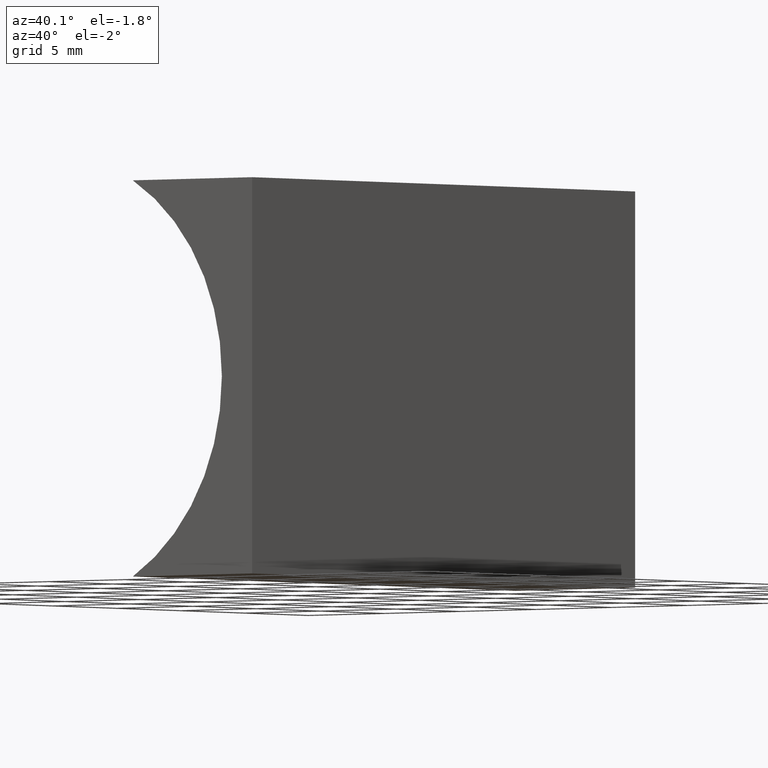
[diagram: clean part render]
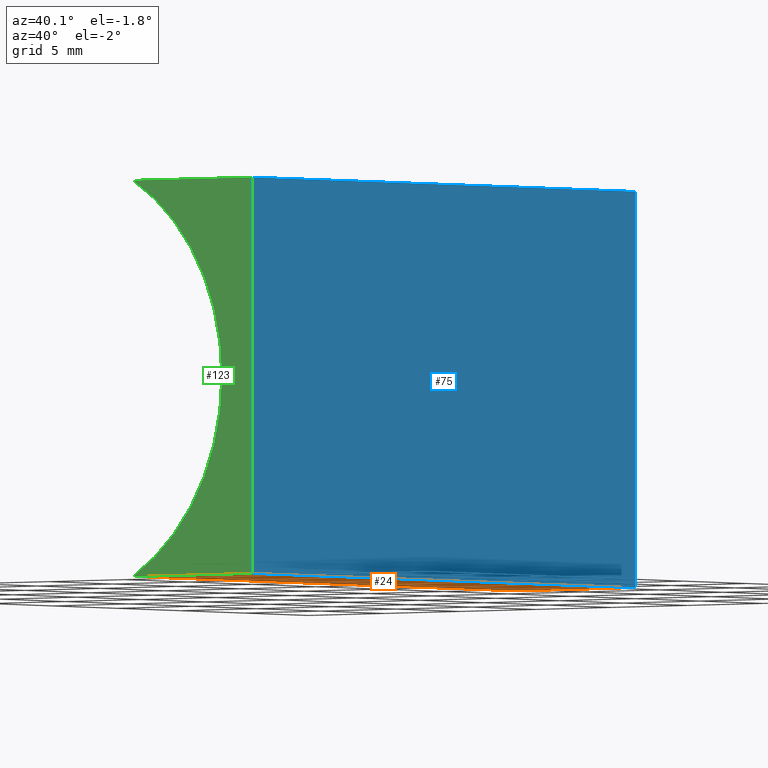
[diagram: same view with three faces highlighted in distinct colors, each labeled with its STEP entity id]
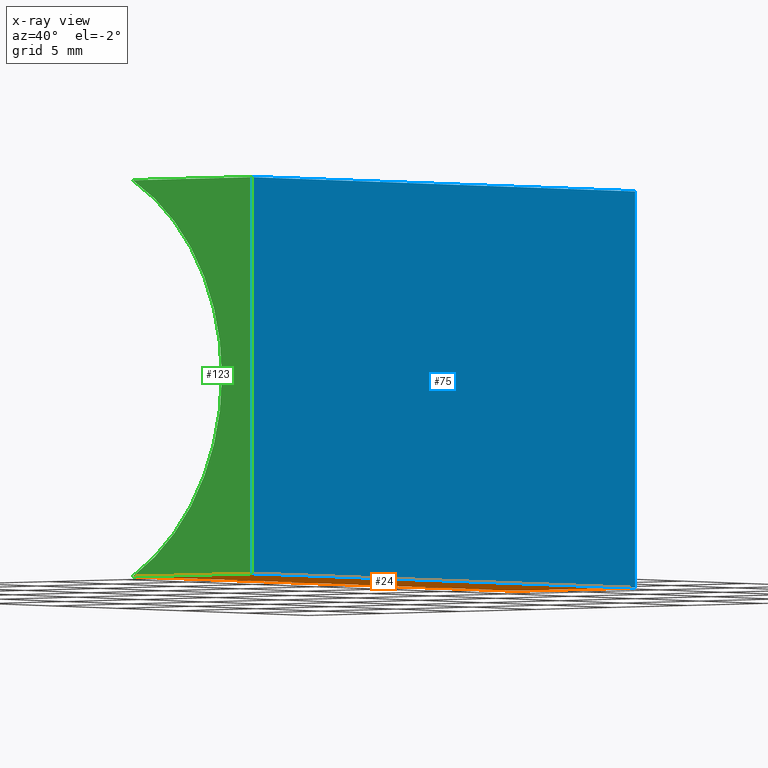
[diagram: x-ray of the same camera — body ghosted, the three highlighted faces saturated]
A machine part, auxiliary view with three faces highlighted in distinct colors.
The next image is the same camera in x-ray (body ghosted, the three faces saturated) — at least one of them is partly hidden behind the body in this view.
Their STEP definitions:

[orange] entity #24 — the highlighted planar face has unit normal (-0, 0, 1).
#6 = VECTOR ( 'NONE', #59, 1000.000000000000000 ) ;
#20 = EDGE_LOOP ( 'NONE', ( #178, #124, #48, #153 ) ) ;
#24 = ADVANCED_FACE ( 'NONE', ( #125 ), #62, .F. ) ;
#31 = CARTESIAN_POINT ( 'NONE',  ( 0.0000000000000000000, 30.00000000000000000, 0.0000000000000000000 ) ) ;
#35 = CARTESIAN_POINT ( 'NONE',  ( -7.873038461671090900, 0.0000000000000000000, -3.469446951953614200E-015 ) ) ;
#46 = LINE ( 'NONE', #80, #155 ) ;
#48 = ORIENTED_EDGE ( 'NONE', *, *, #165, .F. ) ;
#58 = VECTOR ( 'NONE', #144, 1000.000000000000000 ) ;
#59 = DIRECTION ( 'NONE',  ( -1.000000000000000000, 0.0000000000000000000, -4.406744573704530200E-016 ) ) ;
#60 = EDGE_CURVE ( 'NONE', #112, #163, #113, .T. ) ;
#62 = PLANE ( 'NONE',  #86 ) ;
#69 = LINE ( 'NONE', #81, #6 ) ;
#76 = VERTEX_POINT ( 'NONE', #35 ) ;
#80 = CARTESIAN_POINT ( 'NONE',  ( 0.0000000000000000000, 0.0000000000000000000, 0.0000000000000000000 ) ) ;
#81 = CARTESIAN_POINT ( 'NONE',  ( 0.0000000000000000000, 30.00000000000000000, 0.0000000000000000000 ) ) ;
#86 = AXIS2_PLACEMENT_3D ( 'NONE', #148, #109, #195 ) ;
#99 = CARTESIAN_POINT ( 'NONE',  ( -7.873038461671090900, 30.00000000000000000, -3.469446951953614200E-015 ) ) ;
#109 = DIRECTION ( 'NONE',  ( -4.406744573704530200E-016, 0.0000000000000000000, 1.000000000000000000 ) ) ;
#112 = VERTEX_POINT ( 'NONE', #129 ) ;
#113 = LINE ( 'NONE', #31, #194 ) ;
#124 = ORIENTED_EDGE ( 'NONE', *, *, #126, .F. ) ;
#125 = FACE_OUTER_BOUND ( 'NONE', #20, .T. ) ;
#126 = EDGE_CURVE ( 'NONE', #135, #76, #154, .T. ) ;
#129 = CARTESIAN_POINT ( 'NONE',  ( 0.0000000000000000000, 30.00000000000000000, 0.0000000000000000000 ) ) ;
#134 = CARTESIAN_POINT ( 'NONE',  ( 0.0000000000000000000, 0.0000000000000000000, 0.0000000000000000000 ) ) ;
#135 = VERTEX_POINT ( 'NONE', #99 ) ;
#142 = CARTESIAN_POINT ( 'NONE',  ( -7.873038461671090900, 30.00000000000000000, -3.469446951953614200E-015 ) ) ;
#144 = DIRECTION ( 'NONE',  ( -0.0000000000000000000, -1.000000000000000000, -0.0000000000000000000 ) ) ;
#148 = CARTESIAN_POINT ( 'NONE',  ( 0.0000000000000000000, 30.00000000000000000, 0.0000000000000000000 ) ) ;
#153 = ORIENTED_EDGE ( 'NONE', *, *, #60, .T. ) ;
#154 = LINE ( 'NONE', #142, #58 ) ;
#155 = VECTOR ( 'NONE', #192, 1000.000000000000000 ) ;
#163 = VERTEX_POINT ( 'NONE', #134 ) ;
#165 = EDGE_CURVE ( 'NONE', #112, #135, #69, .T. ) ;
#178 = ORIENTED_EDGE ( 'NONE', *, *, #183, .T. ) ;
#183 = EDGE_CURVE ( 'NONE', #163, #76, #46, .T. ) ;
#187 = DIRECTION ( 'NONE',  ( -0.0000000000000000000, -1.000000000000000000, -0.0000000000000000000 ) ) ;
#192 = DIRECTION ( 'NONE',  ( -1.000000000000000000, 0.0000000000000000000, -4.406744573704530200E-016 ) ) ;
#194 = VECTOR ( 'NONE', #187, 1000.000000000000000 ) ;
#195 = DIRECTION ( 'NONE',  ( 1.000000000000000000, 0.0000000000000000000, 4.406744573704530200E-016 ) ) ;

[blue] entity #75 — the highlighted planar face has unit normal (-1, 0, 0).
#5 = AXIS2_PLACEMENT_3D ( 'NONE', #88, #61, #7 ) ;
#7 = DIRECTION ( 'NONE',  ( 1.224646799147353200E-016, 0.0000000000000000000, 1.000000000000000000 ) ) ;
#9 = LINE ( 'NONE', #164, #118 ) ;
#10 = DIRECTION ( 'NONE',  ( -1.224646799147353200E-016, -0.0000000000000000000, -1.000000000000000000 ) ) ;
#13 = EDGE_LOOP ( 'NONE', ( #114, #57, #41, #83 ) ) ;
#16 = CARTESIAN_POINT ( 'NONE',  ( 0.0000000000000000000, 0.0000000000000000000, 0.0000000000000000000 ) ) ;
#28 = CARTESIAN_POINT ( 'NONE',  ( 2.449293598294706500E-015, 30.00000000000000000, 20.00000000000000000 ) ) ;
#31 = CARTESIAN_POINT ( 'NONE',  ( 0.0000000000000000000, 30.00000000000000000, 0.0000000000000000000 ) ) ;
#33 = DIRECTION ( 'NONE',  ( -1.224646799147353200E-016, -0.0000000000000000000, -1.000000000000000000 ) ) ;
#41 = ORIENTED_EDGE ( 'NONE', *, *, #171, .F. ) ;
#49 = FACE_OUTER_BOUND ( 'NONE', #13, .T. ) ;
#57 = ORIENTED_EDGE ( 'NONE', *, *, #60, .F. ) ;
#60 = EDGE_CURVE ( 'NONE', #112, #163, #113, .T. ) ;
#61 = DIRECTION ( 'NONE',  ( -1.000000000000000000, 0.0000000000000000000, 1.224646799147353200E-016 ) ) ;
#65 = CARTESIAN_POINT ( 'NONE',  ( 2.449293598294706500E-015, 30.00000000000000000, 20.00000000000000000 ) ) ;
#75 = ADVANCED_FACE ( 'NONE', ( #49 ), #127, .F. ) ;
#83 = ORIENTED_EDGE ( 'NONE', *, *, #151, .T. ) ;
#88 = CARTESIAN_POINT ( 'NONE',  ( 0.0000000000000000000, 30.00000000000000000, 0.0000000000000000000 ) ) ;
#97 = LINE ( 'NONE', #28, #159 ) ;
#108 = VERTEX_POINT ( 'NONE', #128 ) ;
#112 = VERTEX_POINT ( 'NONE', #129 ) ;
#113 = LINE ( 'NONE', #31, #194 ) ;
#114 = ORIENTED_EDGE ( 'NONE', *, *, #197, .T. ) ;
#118 = VECTOR ( 'NONE', #33, 1000.000000000000000 ) ;
#120 = VERTEX_POINT ( 'NONE', #65 ) ;
#127 = PLANE ( 'NONE',  #5 ) ;
#128 = CARTESIAN_POINT ( 'NONE',  ( 2.449293598294706500E-015, 0.0000000000000000000, 20.00000000000000000 ) ) ;
#129 = CARTESIAN_POINT ( 'NONE',  ( 0.0000000000000000000, 30.00000000000000000, 0.0000000000000000000 ) ) ;
#134 = CARTESIAN_POINT ( 'NONE',  ( 0.0000000000000000000, 0.0000000000000000000, 0.0000000000000000000 ) ) ;
#136 = LINE ( 'NONE', #16, #196 ) ;
#151 = EDGE_CURVE ( 'NONE', #120, #108, #97, .T. ) ;
#159 = VECTOR ( 'NONE', #189, 1000.000000000000000 ) ;
#163 = VERTEX_POINT ( 'NONE', #134 ) ;
#164 = CARTESIAN_POINT ( 'NONE',  ( 0.0000000000000000000, 30.00000000000000000, 0.0000000000000000000 ) ) ;
#171 = EDGE_CURVE ( 'NONE', #120, #112, #9, .T. ) ;
#187 = DIRECTION ( 'NONE',  ( -0.0000000000000000000, -1.000000000000000000, -0.0000000000000000000 ) ) ;
#189 = DIRECTION ( 'NONE',  ( -0.0000000000000000000, -1.000000000000000000, -0.0000000000000000000 ) ) ;
#194 = VECTOR ( 'NONE', #187, 1000.000000000000000 ) ;
#196 = VECTOR ( 'NONE', #10, 1000.000000000000000 ) ;
#197 = EDGE_CURVE ( 'NONE', #108, #163, #136, .T. ) ;

[green] entity #123 — the highlighted planar face has unit normal (0, 1, 0).
#10 = DIRECTION ( 'NONE',  ( -1.224646799147353200E-016, -0.0000000000000000000, -1.000000000000000000 ) ) ;
#12 = VERTEX_POINT ( 'NONE', #191 ) ;
#14 = DIRECTION ( 'NONE',  ( 1.000000000000000000, -0.0000000000000000000, -4.406744573704530200E-016 ) ) ;
#16 = CARTESIAN_POINT ( 'NONE',  ( 0.0000000000000000000, 0.0000000000000000000, 0.0000000000000000000 ) ) ;
#18 = ORIENTED_EDGE ( 'NONE', *, *, #89, .F. ) ;
#19 = CARTESIAN_POINT ( 'NONE',  ( -13.44999999999999900, 0.0000000000000000000, 10.00000000000000200 ) ) ;
#29 = FACE_OUTER_BOUND ( 'NONE', #45, .T. ) ;
#35 = CARTESIAN_POINT ( 'NONE',  ( -7.873038461671090900, 0.0000000000000000000, -3.469446951953614200E-015 ) ) ;
#45 = EDGE_LOOP ( 'NONE', ( #91, #54, #168, #18 ) ) ;
#46 = LINE ( 'NONE', #80, #155 ) ;
#53 = EDGE_CURVE ( 'NONE', #12, #108, #106, .T. ) ;
#54 = ORIENTED_EDGE ( 'NONE', *, *, #197, .F. ) ;
#63 = DIRECTION ( 'NONE',  ( 0.0000000000000000000, 0.0000000000000000000, 1.000000000000000000 ) ) ;
#67 = CARTESIAN_POINT ( 'NONE',  ( -13.44999999999999900, 0.0000000000000000000, 10.00000000000000200 ) ) ;
#76 = VERTEX_POINT ( 'NONE', #35 ) ;
#78 = AXIS2_PLACEMENT_3D ( 'NONE', #67, #145, #190 ) ;
#80 = CARTESIAN_POINT ( 'NONE',  ( 0.0000000000000000000, 0.0000000000000000000, 0.0000000000000000000 ) ) ;
#89 = EDGE_CURVE ( 'NONE', #76, #12, #182, .T. ) ;
#91 = ORIENTED_EDGE ( 'NONE', *, *, #183, .F. ) ;
#106 = LINE ( 'NONE', #152, #119 ) ;
#108 = VERTEX_POINT ( 'NONE', #128 ) ;
#119 = VECTOR ( 'NONE', #14, 1000.000000000000000 ) ;
#121 = DIRECTION ( 'NONE',  ( -0.0000000000000000000, -1.000000000000000000, -0.0000000000000000000 ) ) ;
#123 = ADVANCED_FACE ( 'NONE', ( #29 ), #130, .F. ) ;
#128 = CARTESIAN_POINT ( 'NONE',  ( 2.449293598294706500E-015, 0.0000000000000000000, 20.00000000000000000 ) ) ;
#130 = PLANE ( 'NONE',  #78 ) ;
#134 = CARTESIAN_POINT ( 'NONE',  ( 0.0000000000000000000, 0.0000000000000000000, 0.0000000000000000000 ) ) ;
#136 = LINE ( 'NONE', #16, #196 ) ;
#145 = DIRECTION ( 'NONE',  ( 0.0000000000000000000, 1.000000000000000000, 0.0000000000000000000 ) ) ;
#152 = CARTESIAN_POINT ( 'NONE',  ( 2.449293598294706500E-015, 0.0000000000000000000, 20.00000000000000000 ) ) ;
#155 = VECTOR ( 'NONE', #192, 1000.000000000000000 ) ;
#163 = VERTEX_POINT ( 'NONE', #134 ) ;
#168 = ORIENTED_EDGE ( 'NONE', *, *, #53, .F. ) ;
#176 = AXIS2_PLACEMENT_3D ( 'NONE', #19, #121, #63 ) ;
#182 = CIRCLE ( 'NONE', #176, 11.45000000000000100 ) ;
#183 = EDGE_CURVE ( 'NONE', #163, #76, #46, .T. ) ;
#190 = DIRECTION ( 'NONE',  ( 0.0000000000000000000, -0.0000000000000000000, 1.000000000000000000 ) ) ;
#191 = CARTESIAN_POINT ( 'NONE',  ( -7.873038461671089100, 0.0000000000000000000, 20.00000000000000400 ) ) ;
#192 = DIRECTION ( 'NONE',  ( -1.000000000000000000, 0.0000000000000000000, -4.406744573704530200E-016 ) ) ;
#196 = VECTOR ( 'NONE', #10, 1000.000000000000000 ) ;
#197 = EDGE_CURVE ( 'NONE', #108, #163, #136, .T. ) ;